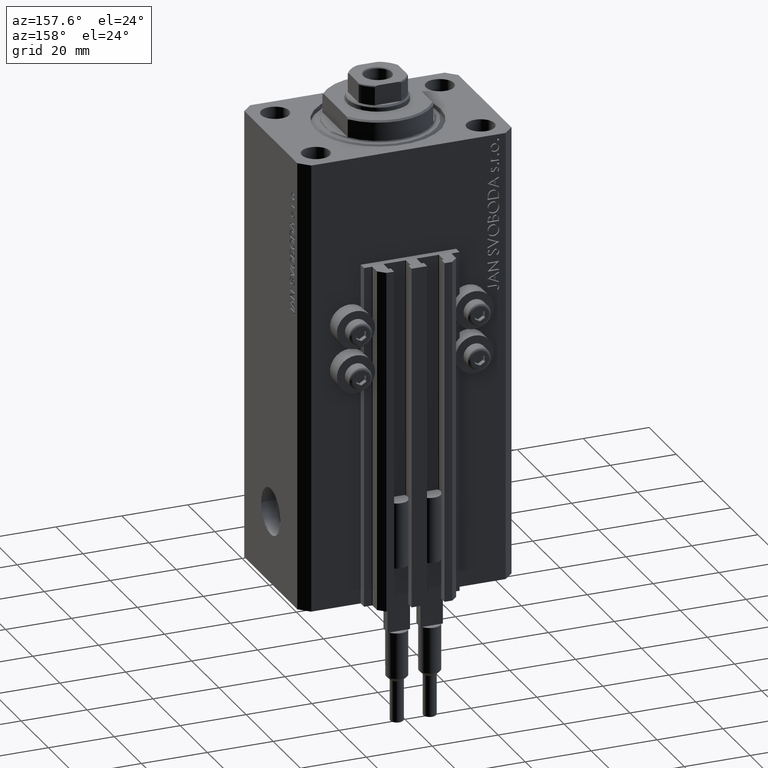
[diagram: clean part render]
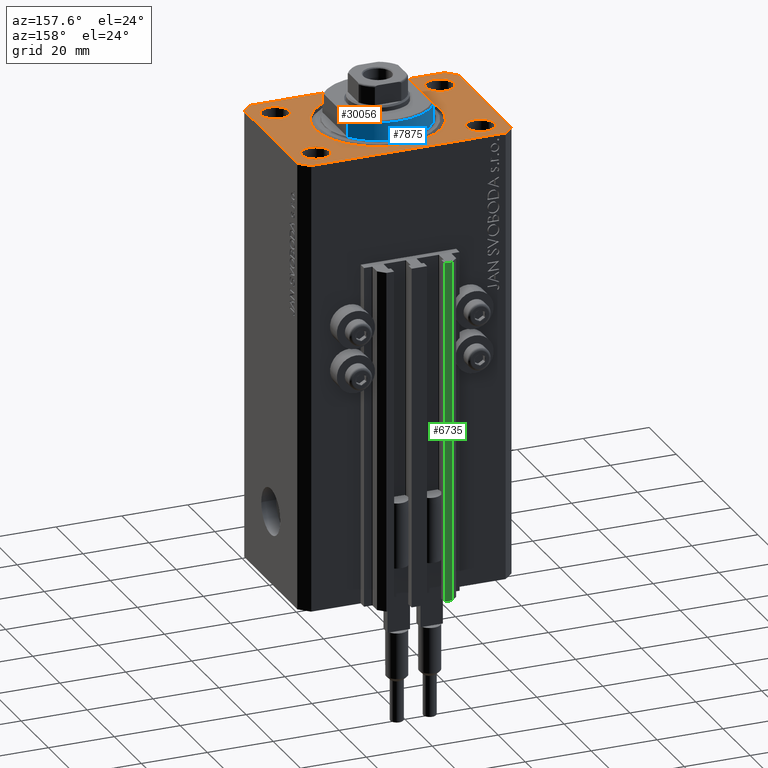
[diagram: same view with three faces highlighted in distinct colors, each labeled with its STEP entity id]
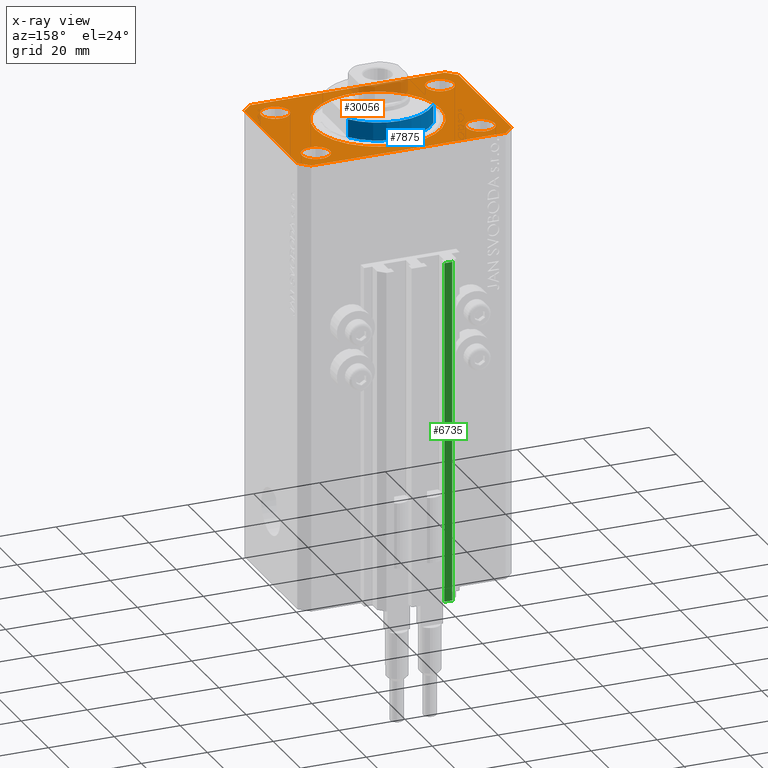
[diagram: x-ray of the same camera — body ghosted, the three highlighted faces saturated]
A machine part, auxiliary view with three faces highlighted in distinct colors.
The next image is the same camera in x-ray (body ghosted, the three faces saturated) — at least one of them is partly hidden behind the body in this view.
Their STEP definitions:

[orange] entity #30056 — the highlighted planar face has unit normal (0, 0, 1).
#94 = CARTESIAN_POINT ( 'NONE',  ( 29.49999999999650413, -22.49999999999949196, 0.000000000000000000 ) ) ;
#514 = VERTEX_POINT ( 'NONE', #38812 ) ;
#893 = EDGE_CURVE ( 'NONE', #514, #6407, #44329, .T. ) ;
#1121 = EDGE_CURVE ( 'NONE', #23989, #43875, #40549, .T. ) ;
#1247 = AXIS2_PLACEMENT_3D ( 'NONE', #38254, #8809, #38505 ) ;
#1272 = FACE_OUTER_BOUND ( 'NONE', #25241, .T. ) ;
#1320 = DIRECTION ( 'NONE',  ( 1.000000000000000000, 0.000000000000000000, 0.000000000000000000 ) ) ;
#1465 = EDGE_CURVE ( 'NONE', #4122, #34976, #16180, .T. ) ;
#1507 = CARTESIAN_POINT ( 'NONE',  ( -29.49999999999650413, 22.49999999999949907, 0.000000000000000000 ) ) ;
#1981 = CARTESIAN_POINT ( 'NONE',  ( 20.75000000004271072, 14.99999999999999289, 0.000000000000000000 ) ) ;
#1988 = DIRECTION ( 'NONE',  ( 0.000000000000000000, 0.000000000000000000, 1.000000000000000000 ) ) ;
#2004 = CARTESIAN_POINT ( 'NONE',  ( -20.74999999995962341, -15.00000000000000355, 0.000000000000000000 ) ) ;
#2293 = CARTESIAN_POINT ( 'NONE',  ( -32.49999999999650413, -19.49999999999949907, 0.000000000000000000 ) ) ;
#2661 = ORIENTED_EDGE ( 'NONE', *, *, #35980, .F. ) ;
#3558 = DIRECTION ( 'NONE',  ( 1.000000000000000000, 1.176083712526788232E-16, 0.000000000000000000 ) ) ;
#4067 = CARTESIAN_POINT ( 'NONE',  ( 32.49999999999651124, -19.49999999999949196, 0.000000000000000000 ) ) ;
#4122 = VERTEX_POINT ( 'NONE', #4300 ) ;
#4215 = CARTESIAN_POINT ( 'NONE',  ( 32.49999999999651124, -19.49999999999949196, 0.000000000000000000 ) ) ;
#4242 = ORIENTED_EDGE ( 'NONE', *, *, #41920, .T. ) ;
#4300 = CARTESIAN_POINT ( 'NONE',  ( 29.24999999995729283, 14.99999999999999289, 0.000000000000000000 ) ) ;
#4466 = DIRECTION ( 'NONE',  ( 1.000000000000000000, 0.000000000000000000, 0.000000000000000000 ) ) ;
#4677 = FACE_BOUND ( 'NONE', #38049, .T. ) ;
#5195 = EDGE_CURVE ( 'NONE', #42525, #38561, #41982, .T. ) ;
#5221 = DIRECTION ( 'NONE',  ( 1.000000000000000000, 0.000000000000000000, 0.000000000000000000 ) ) ;
#5311 = VECTOR ( 'NONE', #31191, 1000.000000000000114 ) ;
#5686 = EDGE_LOOP ( 'NONE', ( #11164, #25402 ) ) ;
#6093 = CARTESIAN_POINT ( 'NONE',  ( -25.00000000000000000, 14.99999999999999645, 0.000000000000000000 ) ) ;
#6407 = VERTEX_POINT ( 'NONE', #16156 ) ;
#6417 = LINE ( 'NONE', #2293, #37774 ) ;
#6494 = DIRECTION ( 'NONE',  ( 0.7071067811865483499, 0.7071067811865466846, 0.000000000000000000 ) ) ;
#7202 = CARTESIAN_POINT ( 'NONE',  ( -29.49999999999650413, -22.49999999999949907, 0.000000000000000000 ) ) ;
#7299 = ORIENTED_EDGE ( 'NONE', *, *, #5195, .F. ) ;
#8809 = DIRECTION ( 'NONE',  ( 0.000000000000000000, 0.000000000000000000, 1.000000000000000000 ) ) ;
#8972 = ORIENTED_EDGE ( 'NONE', *, *, #893, .T. ) ;
#9708 = VERTEX_POINT ( 'NONE', #41129 ) ;
#10159 = AXIS2_PLACEMENT_3D ( 'NONE', #15494, #36687, #14542 ) ;
#10212 = CIRCLE ( 'NONE', #37405, 4.250000000040370374 ) ;
#10512 = EDGE_LOOP ( 'NONE', ( #47250, #42592 ) ) ;
#11164 = ORIENTED_EDGE ( 'NONE', *, *, #1465, .F. ) ;
#11731 = FACE_BOUND ( 'NONE', #5686, .T. ) ;
#12262 = CARTESIAN_POINT ( 'NONE',  ( 25.00000000000000000, 14.99999999999999289, 0.000000000000000000 ) ) ;
#12522 = DIRECTION ( 'NONE',  ( 0.000000000000000000, 0.000000000000000000, 1.000000000000000000 ) ) ;
#13036 = DIRECTION ( 'NONE',  ( -1.000000000000000000, -3.528251137580330676E-16, 0.000000000000000000 ) ) ;
#13074 = VECTOR ( 'NONE', #3558, 1000.000000000000000 ) ;
#13101 = EDGE_CURVE ( 'NONE', #30097, #29849, #10212, .T. ) ;
#13646 = DIRECTION ( 'NONE',  ( 1.000000000000000000, 0.000000000000000000, 0.000000000000000000 ) ) ;
#14030 = VECTOR ( 'NONE', #34485, 1000.000000000000000 ) ;
#14518 = DIRECTION ( 'NONE',  ( 1.000000000000000000, 0.000000000000000000, 0.000000000000000000 ) ) ;
#14542 = DIRECTION ( 'NONE',  ( 1.000000000000000000, 0.000000000000000000, 0.000000000000000000 ) ) ;
#14724 = ORIENTED_EDGE ( 'NONE', *, *, #46810, .F. ) ;
#14791 = VECTOR ( 'NONE', #29388, 1000.000000000000000 ) ;
#15273 = VECTOR ( 'NONE', #6494, 1000.000000000000000 ) ;
#15494 = CARTESIAN_POINT ( 'NONE',  ( 0.000000000000000000, 0.000000000000000000, 0.000000000000000000 ) ) ;
#15879 = FACE_BOUND ( 'NONE', #10512, .T. ) ;
#16156 = CARTESIAN_POINT ( 'NONE',  ( -32.49999999999650413, -19.49999999999949907, 0.000000000000000000 ) ) ;
#16180 = CIRCLE ( 'NONE', #28592, 4.249999999957291053 ) ;
#16262 = LINE ( 'NONE', #43013, #15273 ) ;
#16765 = VERTEX_POINT ( 'NONE', #28447 ) ;
#17141 = DIRECTION ( 'NONE',  ( 0.7071067811865474617, -0.7071067811865474617, 0.000000000000000000 ) ) ;
#17296 = ORIENTED_EDGE ( 'NONE', *, *, #34622, .F. ) ;
#17697 = DIRECTION ( 'NONE',  ( 0.000000000000000000, 0.000000000000000000, 1.000000000000000000 ) ) ;
#17720 = AXIS2_PLACEMENT_3D ( 'NONE', #6093, #46764, #39200 ) ;
#17769 = ORIENTED_EDGE ( 'NONE', *, *, #27245, .F. ) ;
#17788 = CARTESIAN_POINT ( 'NONE',  ( -25.00000000000000000, 14.99999999999999645, 0.000000000000000000 ) ) ;
#19580 = DIRECTION ( 'NONE',  ( 0.000000000000000000, 0.000000000000000000, 1.000000000000000000 ) ) ;
#20165 = ORIENTED_EDGE ( 'NONE', *, *, #29409, .T. ) ;
#20376 = CARTESIAN_POINT ( 'NONE',  ( 20.75000000002367884, -15.00000000000000355, 0.000000000000000000 ) ) ;
#21434 = CIRCLE ( 'NONE', #36199, 4.250000000021375790 ) ;
#21890 = ORIENTED_EDGE ( 'NONE', *, *, #36672, .T. ) ;
#22918 = VECTOR ( 'NONE', #13036, 1000.000000000000000 ) ;
#23398 = PLANE ( 'NONE',  #1247 ) ;
#23646 = FACE_BOUND ( 'NONE', #35330, .T. ) ;
#23989 = VERTEX_POINT ( 'NONE', #34386 ) ;
#24065 = CARTESIAN_POINT ( 'NONE',  ( -24.99999999999999289, -15.00000000000000355, 0.000000000000000000 ) ) ;
#24673 = AXIS2_PLACEMENT_3D ( 'NONE', #29780, #40512, #4466 ) ;
#25241 = EDGE_LOOP ( 'NONE', ( #20165, #21890, #8972, #39554, #38368, #36396, #4242, #42573 ) ) ;
#25402 = ORIENTED_EDGE ( 'NONE', *, *, #40899, .F. ) ;
#25956 = CARTESIAN_POINT ( 'NONE',  ( 32.49999999999702993, 19.49999999999945999, 0.000000000000000000 ) ) ;
#26434 = LINE ( 'NONE', #4067, #14030 ) ;
#26966 = EDGE_CURVE ( 'NONE', #42830, #40740, #38567, .T. ) ;
#27245 = EDGE_CURVE ( 'NONE', #29186, #9708, #21434, .T. ) ;
#27636 = CIRCLE ( 'NONE', #36986, 4.250000000040370374 ) ;
#27893 = EDGE_CURVE ( 'NONE', #6407, #23989, #6417, .T. ) ;
#28447 = CARTESIAN_POINT ( 'NONE',  ( 32.49999999999702993, 19.49999999999945999, 0.000000000000000000 ) ) ;
#28592 = AXIS2_PLACEMENT_3D ( 'NONE', #40022, #32720, #46857 ) ;
#28779 = CARTESIAN_POINT ( 'NONE',  ( 24.99999999999999289, -15.00000000000000355, 0.000000000000000000 ) ) ;
#29186 = VERTEX_POINT ( 'NONE', #31146 ) ;
#29217 = AXIS2_PLACEMENT_3D ( 'NONE', #28779, #32440, #31718 ) ;
#29229 = CARTESIAN_POINT ( 'NONE',  ( -32.49999999999650413, 19.49999999999949907, 0.000000000000000000 ) ) ;
#29388 = DIRECTION ( 'NONE',  ( -0.7071067811865344721, 0.7071067811865606734, 0.000000000000000000 ) ) ;
#29409 = EDGE_CURVE ( 'NONE', #33985, #31796, #42496, .T. ) ;
#29780 = CARTESIAN_POINT ( 'NONE',  ( 24.99999999999999289, -15.00000000000000355, 0.000000000000000000 ) ) ;
#29849 = VERTEX_POINT ( 'NONE', #44839 ) ;
#30056 = ADVANCED_FACE ( 'NONE', ( #23646, #15879, #42159, #11731, #4677, #1272 ), #23398, .T. ) ;
#30097 = VERTEX_POINT ( 'NONE', #2004 ) ;
#30334 = CIRCLE ( 'NONE', #10159, 19.00000000000000000 ) ;
#30401 = EDGE_CURVE ( 'NONE', #29849, #30097, #27636, .T. ) ;
#30446 = ORIENTED_EDGE ( 'NONE', *, *, #26966, .F. ) ;
#31103 = CARTESIAN_POINT ( 'NONE',  ( 19.00000000000000000, 0.000000000000000000, 0.000000000000000000 ) ) ;
#31146 = CARTESIAN_POINT ( 'NONE',  ( -29.25000000002137668, 14.99999999999999645, 0.000000000000000000 ) ) ;
#31191 = DIRECTION ( 'NONE',  ( -0.7071067811865474617, -0.7071067811865474617, 0.000000000000000000 ) ) ;
#31718 = DIRECTION ( 'NONE',  ( 1.000000000000000000, 0.000000000000000000, 0.000000000000000000 ) ) ;
#31796 = VERTEX_POINT ( 'NONE', #46853 ) ;
#32308 = EDGE_CURVE ( 'NONE', #43875, #37761, #16262, .T. ) ;
#32440 = DIRECTION ( 'NONE',  ( 0.000000000000000000, 0.000000000000000000, 1.000000000000000000 ) ) ;
#32720 = DIRECTION ( 'NONE',  ( 0.000000000000000000, 0.000000000000000000, 1.000000000000000000 ) ) ;
#33412 = AXIS2_PLACEMENT_3D ( 'NONE', #47637, #17697, #14518 ) ;
#33597 = CARTESIAN_POINT ( 'NONE',  ( 29.49999999999707967, 22.49999999999952038, 0.000000000000000000 ) ) ;
#33985 = VERTEX_POINT ( 'NONE', #33597 ) ;
#34168 = CIRCLE ( 'NONE', #41189, 4.249999999957291053 ) ;
#34258 = DIRECTION ( 'NONE',  ( 0.000000000000000000, -1.000000000000000000, 0.000000000000000000 ) ) ;
#34386 = CARTESIAN_POINT ( 'NONE',  ( -29.49999999999650413, -22.49999999999949907, 0.000000000000000000 ) ) ;
#34485 = DIRECTION ( 'NONE',  ( 1.334402673828349134E-14, 1.000000000000000000, 0.000000000000000000 ) ) ;
#34622 = EDGE_CURVE ( 'NONE', #40740, #42830, #34805, .T. ) ;
#34805 = CIRCLE ( 'NONE', #24673, 4.249999999976314058 ) ;
#34840 = LINE ( 'NONE', #1507, #5311 ) ;
#34976 = VERTEX_POINT ( 'NONE', #1981 ) ;
#35330 = EDGE_LOOP ( 'NONE', ( #14724, #7299 ) ) ;
#35980 = EDGE_CURVE ( 'NONE', #9708, #29186, #46496, .T. ) ;
#36153 = CARTESIAN_POINT ( 'NONE',  ( 29.24999999997631051, -15.00000000000000355, 0.000000000000000000 ) ) ;
#36199 = AXIS2_PLACEMENT_3D ( 'NONE', #17788, #1988, #13646 ) ;
#36396 = ORIENTED_EDGE ( 'NONE', *, *, #32308, .T. ) ;
#36672 = EDGE_CURVE ( 'NONE', #31796, #514, #34840, .T. ) ;
#36687 = DIRECTION ( 'NONE',  ( 0.000000000000000000, 0.000000000000000000, 1.000000000000000000 ) ) ;
#36986 = AXIS2_PLACEMENT_3D ( 'NONE', #24065, #46484, #38928 ) ;
#37405 = AXIS2_PLACEMENT_3D ( 'NONE', #40995, #12522, #5221 ) ;
#37761 = VERTEX_POINT ( 'NONE', #4215 ) ;
#37774 = VECTOR ( 'NONE', #17141, 1000.000000000000114 ) ;
#38049 = EDGE_LOOP ( 'NONE', ( #2661, #17769 ) ) ;
#38254 = CARTESIAN_POINT ( 'NONE',  ( 0.000000000000000000, 0.000000000000000000, 0.000000000000000000 ) ) ;
#38354 = CARTESIAN_POINT ( 'NONE',  ( 29.49999999999707967, 22.49999999999952038, 0.000000000000000000 ) ) ;
#38368 = ORIENTED_EDGE ( 'NONE', *, *, #1121, .T. ) ;
#38505 = DIRECTION ( 'NONE',  ( 1.000000000000000000, 0.000000000000000000, -0.000000000000000000 ) ) ;
#38561 = VERTEX_POINT ( 'NONE', #31103 ) ;
#38567 = CIRCLE ( 'NONE', #29217, 4.249999999976314058 ) ;
#38812 = CARTESIAN_POINT ( 'NONE',  ( -32.49999999999650413, 19.49999999999949907, 0.000000000000000000 ) ) ;
#38928 = DIRECTION ( 'NONE',  ( 1.000000000000000000, 0.000000000000000000, 0.000000000000000000 ) ) ;
#39200 = DIRECTION ( 'NONE',  ( 1.000000000000000000, 0.000000000000000000, 0.000000000000000000 ) ) ;
#39523 = VECTOR ( 'NONE', #34258, 1000.000000000000000 ) ;
#39554 = ORIENTED_EDGE ( 'NONE', *, *, #27893, .T. ) ;
#40022 = CARTESIAN_POINT ( 'NONE',  ( 25.00000000000000000, 14.99999999999999289, 0.000000000000000000 ) ) ;
#40061 = EDGE_LOOP ( 'NONE', ( #17296, #30446 ) ) ;
#40512 = DIRECTION ( 'NONE',  ( 0.000000000000000000, 0.000000000000000000, 1.000000000000000000 ) ) ;
#40549 = LINE ( 'NONE', #7202, #13074 ) ;
#40740 = VERTEX_POINT ( 'NONE', #36153 ) ;
#40821 = LINE ( 'NONE', #25956, #14791 ) ;
#40899 = EDGE_CURVE ( 'NONE', #34976, #4122, #34168, .T. ) ;
#40995 = CARTESIAN_POINT ( 'NONE',  ( -24.99999999999999289, -15.00000000000000355, 0.000000000000000000 ) ) ;
#41129 = CARTESIAN_POINT ( 'NONE',  ( -20.74999999997862687, 14.99999999999999645, 0.000000000000000000 ) ) ;
#41189 = AXIS2_PLACEMENT_3D ( 'NONE', #12262, #19580, #1320 ) ;
#41814 = EDGE_CURVE ( 'NONE', #16765, #33985, #40821, .T. ) ;
#41920 = EDGE_CURVE ( 'NONE', #37761, #16765, #26434, .T. ) ;
#41982 = CIRCLE ( 'NONE', #33412, 19.00000000000000000 ) ;
#42159 = FACE_BOUND ( 'NONE', #40061, .T. ) ;
#42496 = LINE ( 'NONE', #38354, #22918 ) ;
#42525 = VERTEX_POINT ( 'NONE', #45513 ) ;
#42573 = ORIENTED_EDGE ( 'NONE', *, *, #41814, .T. ) ;
#42592 = ORIENTED_EDGE ( 'NONE', *, *, #30401, .F. ) ;
#42830 = VERTEX_POINT ( 'NONE', #20376 ) ;
#43013 = CARTESIAN_POINT ( 'NONE',  ( 29.49999999999650413, -22.49999999999949196, 0.000000000000000000 ) ) ;
#43875 = VERTEX_POINT ( 'NONE', #94 ) ;
#44329 = LINE ( 'NONE', #29229, #39523 ) ;
#44839 = CARTESIAN_POINT ( 'NONE',  ( -29.25000000004036593, -15.00000000000000355, 0.000000000000000000 ) ) ;
#45513 = CARTESIAN_POINT ( 'NONE',  ( -19.00000000000000000, 2.326828918379970970E-15, 0.000000000000000000 ) ) ;
#46484 = DIRECTION ( 'NONE',  ( 0.000000000000000000, 0.000000000000000000, 1.000000000000000000 ) ) ;
#46496 = CIRCLE ( 'NONE', #17720, 4.250000000021375790 ) ;
#46764 = DIRECTION ( 'NONE',  ( 0.000000000000000000, 0.000000000000000000, 1.000000000000000000 ) ) ;
#46810 = EDGE_CURVE ( 'NONE', #38561, #42525, #30334, .T. ) ;
#46853 = CARTESIAN_POINT ( 'NONE',  ( -29.49999999999650413, 22.49999999999949907, 0.000000000000000000 ) ) ;
#46857 = DIRECTION ( 'NONE',  ( 1.000000000000000000, 0.000000000000000000, 0.000000000000000000 ) ) ;
#47250 = ORIENTED_EDGE ( 'NONE', *, *, #13101, .F. ) ;
#47637 = CARTESIAN_POINT ( 'NONE',  ( 0.000000000000000000, 0.000000000000000000, 0.000000000000000000 ) ) ;

[blue] entity #7875 — the highlighted cylindrical surface (partial cylindrical patch) has radius 16 mm, axis along (0, 0, -1).
#1494 = VECTOR ( 'NONE', #12664, 1000.000000000000000 ) ;
#1976 = CARTESIAN_POINT ( 'NONE',  ( 13.00000000000000000, 9.327379053088916905, -6.000000000000014211 ) ) ;
#2710 = CARTESIAN_POINT ( 'NONE',  ( 0.000000000000000000, 0.000000000000000000, -6.500000000000000000 ) ) ;
#2943 = CYLINDRICAL_SURFACE ( 'NONE', #23285, 16.00000000000000000 ) ;
#3917 = CARTESIAN_POINT ( 'NONE',  ( 13.00000000000000000, 9.327379053088815652, -0.4999999999999995559 ) ) ;
#5993 = CARTESIAN_POINT ( 'NONE',  ( -13.00000000000000000, 9.327379053088815652, -0.4999999999999995559 ) ) ;
#7491 = CIRCLE ( 'NONE', #44800, 16.00000000000000000 ) ;
#7875 = ADVANCED_FACE ( 'NONE', ( #21188 ), #2943, .T. ) ;
#8556 = DIRECTION ( 'NONE',  ( 1.000000000000000000, -8.881784197001252323E-16, 0.000000000000000000 ) ) ;
#10478 = DIRECTION ( 'NONE',  ( -0.000000000000000000, -0.000000000000000000, 1.000000000000000000 ) ) ;
#11158 = ORIENTED_EDGE ( 'NONE', *, *, #38242, .F. ) ;
#11258 = DIRECTION ( 'NONE',  ( -1.000000000000000000, 0.000000000000000000, 0.000000000000000000 ) ) ;
#11599 = VERTEX_POINT ( 'NONE', #1976 ) ;
#12664 = DIRECTION ( 'NONE',  ( -0.000000000000000000, -0.000000000000000000, 1.000000000000000000 ) ) ;
#12696 = DIRECTION ( 'NONE',  ( -0.000000000000000000, -0.000000000000000000, -1.000000000000000000 ) ) ;
#15398 = DIRECTION ( 'NONE',  ( 0.000000000000000000, 0.000000000000000000, 1.000000000000000000 ) ) ;
#15419 = EDGE_LOOP ( 'NONE', ( #11158, #27700, #19102, #46575 ) ) ;
#16698 = CARTESIAN_POINT ( 'NONE',  ( -13.00000000000000000, 9.327379053088916905, -6.000000000000014211 ) ) ;
#17370 = VERTEX_POINT ( 'NONE', #3917 ) ;
#17402 = EDGE_CURVE ( 'NONE', #35494, #37167, #19968, .T. ) ;
#18803 = CARTESIAN_POINT ( 'NONE',  ( 0.000000000000000000, 0.000000000000000000, -6.000000000000023981 ) ) ;
#19102 = ORIENTED_EDGE ( 'NONE', *, *, #17402, .T. ) ;
#19968 = LINE ( 'NONE', #30661, #29264 ) ;
#21188 = FACE_OUTER_BOUND ( 'NONE', #15419, .T. ) ;
#22378 = EDGE_CURVE ( 'NONE', #11599, #35494, #41499, .T. ) ;
#23285 = AXIS2_PLACEMENT_3D ( 'NONE', #2710, #10478, #36043 ) ;
#23608 = AXIS2_PLACEMENT_3D ( 'NONE', #18803, #15398, #11258 ) ;
#23849 = CARTESIAN_POINT ( 'NONE',  ( 13.00000000000000000, 9.327379053088813876, -6.500000000000000000 ) ) ;
#24090 = LINE ( 'NONE', #23849, #1494 ) ;
#27497 = DIRECTION ( 'NONE',  ( -0.000000000000000000, -0.000000000000000000, 1.000000000000000000 ) ) ;
#27700 = ORIENTED_EDGE ( 'NONE', *, *, #22378, .T. ) ;
#27978 = EDGE_CURVE ( 'NONE', #37167, #17370, #7491, .T. ) ;
#29264 = VECTOR ( 'NONE', #27497, 1000.000000000000000 ) ;
#30661 = CARTESIAN_POINT ( 'NONE',  ( -13.00000000000000000, 9.327379053088813876, -6.500000000000000000 ) ) ;
#35494 = VERTEX_POINT ( 'NONE', #16698 ) ;
#36043 = DIRECTION ( 'NONE',  ( 1.000000000000000000, 0.000000000000000000, 0.000000000000000000 ) ) ;
#37167 = VERTEX_POINT ( 'NONE', #5993 ) ;
#38242 = EDGE_CURVE ( 'NONE', #11599, #17370, #24090, .T. ) ;
#38250 = CARTESIAN_POINT ( 'NONE',  ( 0.000000000000000000, 0.000000000000000000, -0.4999999999999995559 ) ) ;
#41499 = CIRCLE ( 'NONE', #23608, 16.00000000000000000 ) ;
#44800 = AXIS2_PLACEMENT_3D ( 'NONE', #38250, #12696, #8556 ) ;
#46575 = ORIENTED_EDGE ( 'NONE', *, *, #27978, .T. ) ;

[green] entity #6735 — the highlighted planar face has unit normal (0, 1, 0).
#2633 = VECTOR ( 'NONE', #9964, 1000.000000000000000 ) ;
#2713 = ORIENTED_EDGE ( 'NONE', *, *, #25802, .T. ) ;
#2970 = EDGE_CURVE ( 'NONE', #36525, #9277, #7221, .T. ) ;
#3477 = CARTESIAN_POINT ( 'NONE',  ( -7.650000000000000355, 30.49999999999948486, -137.0000000000000000 ) ) ;
#6700 = CARTESIAN_POINT ( 'NONE',  ( -7.650000000000000355, 30.49999999999948486, -137.0000000000000000 ) ) ;
#6735 = ADVANCED_FACE ( 'NONE', ( #38229 ), #12191, .T. ) ;
#7221 = LINE ( 'NONE', #29133, #17045 ) ;
#7423 = VECTOR ( 'NONE', #24102, 1000.000000000000000 ) ;
#8189 = CARTESIAN_POINT ( 'NONE',  ( -10.00000000000000000, 30.49999999999948841, -33.00000000000000000 ) ) ;
#8526 = VERTEX_POINT ( 'NONE', #37760 ) ;
#9268 = DIRECTION ( 'NONE',  ( 1.476360405086645049E-15, 1.000000000000000000, -0.000000000000000000 ) ) ;
#9277 = VERTEX_POINT ( 'NONE', #8189 ) ;
#9964 = DIRECTION ( 'NONE',  ( 0.000000000000000000, 0.000000000000000000, 1.000000000000000000 ) ) ;
#12191 = PLANE ( 'NONE',  #36554 ) ;
#12553 = VERTEX_POINT ( 'NONE', #3477 ) ;
#12678 = LINE ( 'NONE', #23624, #7423 ) ;
#13288 = DIRECTION ( 'NONE',  ( 0.000000000000000000, 0.000000000000000000, 1.000000000000000000 ) ) ;
#13857 = LINE ( 'NONE', #40147, #2633 ) ;
#15452 = EDGE_CURVE ( 'NONE', #8526, #9277, #13857, .T. ) ;
#15545 = VECTOR ( 'NONE', #13288, 1000.000000000000000 ) ;
#15664 = ORIENTED_EDGE ( 'NONE', *, *, #15452, .T. ) ;
#17045 = VECTOR ( 'NONE', #21349, 1000.000000000000000 ) ;
#18550 = CARTESIAN_POINT ( 'NONE',  ( -7.650000000000000355, 30.49999999999948486, -33.00000000000000000 ) ) ;
#18777 = EDGE_LOOP ( 'NONE', ( #42112, #25780, #2713, #15664 ) ) ;
#21349 = DIRECTION ( 'NONE',  ( -1.000000000000000000, 1.476360405086644852E-15, 0.000000000000000000 ) ) ;
#23624 = CARTESIAN_POINT ( 'NONE',  ( -7.650000000000000355, 30.49999999999948486, -137.0000000000000000 ) ) ;
#24102 = DIRECTION ( 'NONE',  ( -1.000000000000000000, 1.476360405086644852E-15, 0.000000000000000000 ) ) ;
#25780 = ORIENTED_EDGE ( 'NONE', *, *, #40707, .F. ) ;
#25802 = EDGE_CURVE ( 'NONE', #12553, #8526, #12678, .T. ) ;
#27015 = DIRECTION ( 'NONE',  ( -1.000000000000000000, 1.476360405086645049E-15, 0.000000000000000000 ) ) ;
#29133 = CARTESIAN_POINT ( 'NONE',  ( -7.650000000000000355, 30.49999999999948486, -33.00000000000000000 ) ) ;
#35313 = CARTESIAN_POINT ( 'NONE',  ( -7.650000000000000355, 30.49999999999948486, -137.0000000000000000 ) ) ;
#36391 = LINE ( 'NONE', #6700, #15545 ) ;
#36525 = VERTEX_POINT ( 'NONE', #18550 ) ;
#36554 = AXIS2_PLACEMENT_3D ( 'NONE', #35313, #9268, #27015 ) ;
#37760 = CARTESIAN_POINT ( 'NONE',  ( -10.00000000000000000, 30.49999999999948841, -137.0000000000000000 ) ) ;
#38229 = FACE_OUTER_BOUND ( 'NONE', #18777, .T. ) ;
#40147 = CARTESIAN_POINT ( 'NONE',  ( -10.00000000000000000, 30.49999999999948841, -137.0000000000000000 ) ) ;
#40707 = EDGE_CURVE ( 'NONE', #12553, #36525, #36391, .T. ) ;
#42112 = ORIENTED_EDGE ( 'NONE', *, *, #2970, .F. ) ;